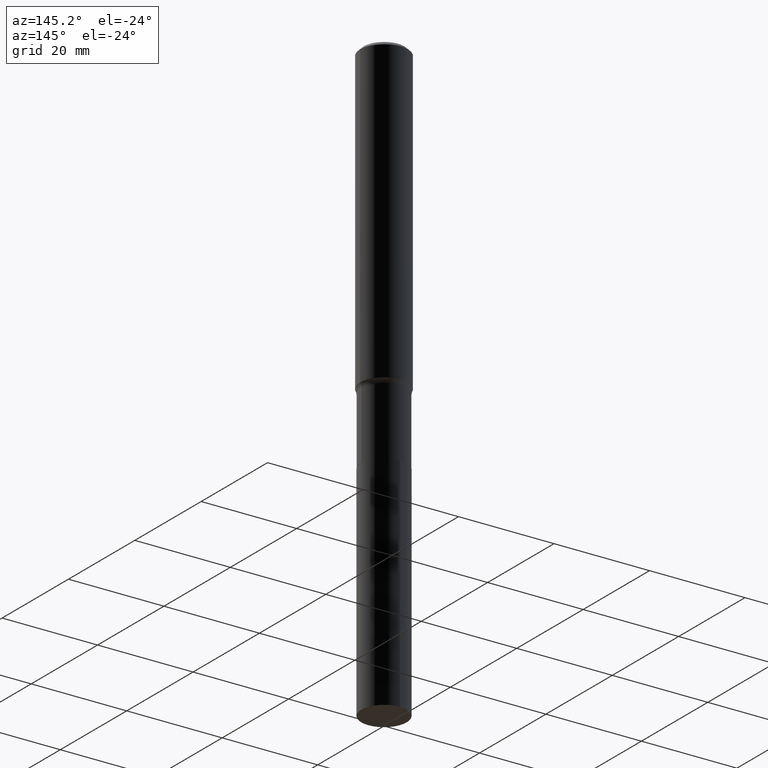
[diagram: clean part render]
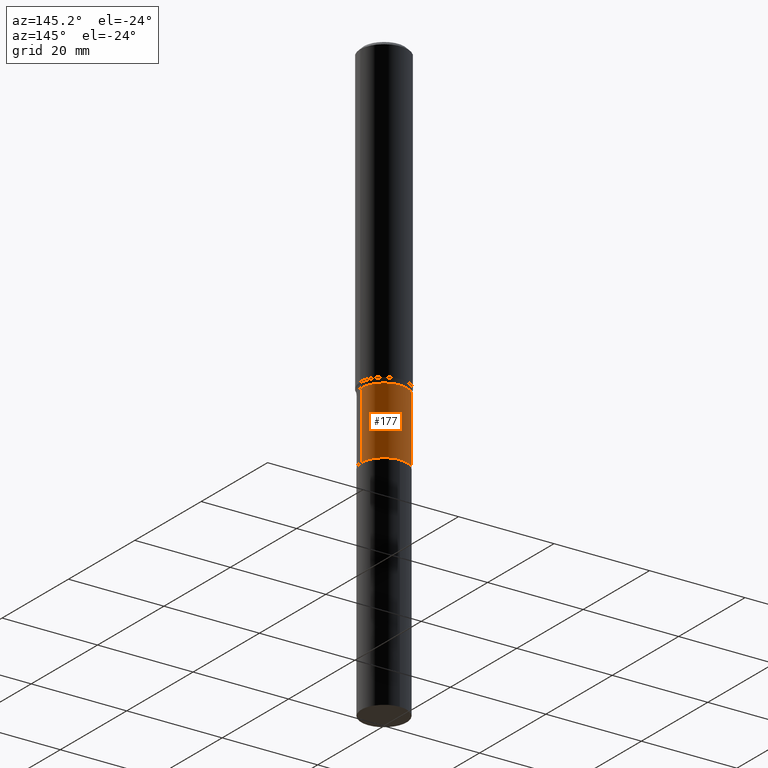
[diagram: same view with one face highlighted and labeled with its STEP entity id]
A machine part, auxiliary view. The second image highlights one B-rep face of the part: STEP entity #177.
In plain terms, the highlighted cylindrical surface (edge-blend (fillet) strip) has radius 4.7498 mm, axis along (-0, 0, 1).
Its self-contained STEP definition (entity closure, byte-faithful):
#2 = CYLINDRICAL_SURFACE ( 'NONE', #114, 0.1869999999999999718 ) ;
#11 = ORIENTED_EDGE ( 'NONE', *, *, #345, .T. ) ;
#23 = CIRCLE ( 'NONE', #323, 0.1869999999999999440 ) ;
#35 = DIRECTION ( 'NONE',  ( -2.445468806185136877E-29, 3.491481338843145188E-15, 1.000000000000000000 ) ) ;
#57 = DIRECTION ( 'NONE',  ( 1.000000000000000000, -6.982962677686265133E-15, 0.000000000000000000 ) ) ;
#71 = FACE_OUTER_BOUND ( 'NONE', #242, .T. ) ;
#74 = DIRECTION ( 'NONE',  ( 1.000000000000000000, -6.982962677686267499E-15, 0.000000000000000000 ) ) ;
#76 = DIRECTION ( 'NONE',  ( 1.000000000000000000, -6.982962677686266711E-15, 4.876176775795935793E-29 ) ) ;
#79 = CARTESIAN_POINT ( 'NONE',  ( -0.1869999999999999440, -8.492822090294381036E-15, -2.536200000000000010 ) ) ;
#80 = EDGE_CURVE ( 'NONE', #390, #309, #387, .T. ) ;
#90 = AXIS2_PLACEMENT_3D ( 'NONE', #382, #240, #57 ) ;
#98 = VECTOR ( 'NONE', #265, 39.37007874015748143 ) ;
#111 = DIRECTION ( 'NONE',  ( -2.445468806185136597E-29, 3.491481338843145583E-15, 1.000000000000000000 ) ) ;
#112 = CARTESIAN_POINT ( 'NONE',  ( 0.1869999999999999718, -1.305814020727331607E-15, 9.118450570738398307E-30 ) ) ;
#114 = AXIS2_PLACEMENT_3D ( 'NONE', #464, #219, #76 ) ;
#116 = CARTESIAN_POINT ( 'NONE',  ( -0.1869999999999999996, -8.492822090294381036E-15, -3.089799999999999436 ) ) ;
#125 = CARTESIAN_POINT ( 'NONE',  ( 0.1869999999999999996, -1.209379306148488144E-14, -3.089799999999999436 ) ) ;
#144 = LINE ( 'NONE', #112, #229 ) ;
#147 = EDGE_CURVE ( 'NONE', #390, #448, #144, .T. ) ;
#177 = ADVANCED_FACE ( 'NONE', ( #71 ), #2, .T. ) ;
#219 = DIRECTION ( 'NONE',  ( -2.445468806185136597E-29, 3.491481338843145583E-15, 1.000000000000000000 ) ) ;
#229 = VECTOR ( 'NONE', #35, 39.37007874015748143 ) ;
#230 = LINE ( 'NONE', #298, #98 ) ;
#240 = DIRECTION ( 'NONE',  ( -2.445468806185136597E-29, 3.491481338843145583E-15, 1.000000000000000000 ) ) ;
#242 = EDGE_LOOP ( 'NONE', ( #310, #11, #274, #411 ) ) ;
#265 = DIRECTION ( 'NONE',  ( -2.445468806185136877E-29, 3.491481338843145188E-15, 1.000000000000000000 ) ) ;
#274 = ORIENTED_EDGE ( 'NONE', *, *, #431, .F. ) ;
#298 = CARTESIAN_POINT ( 'NONE',  ( -0.1869999999999999718, 1.328714915871387147E-15, -9.198408618776671699E-30 ) ) ;
#309 = VERTEX_POINT ( 'NONE', #116 ) ;
#310 = ORIENTED_EDGE ( 'NONE', *, *, #80, .T. ) ;
#323 = AXIS2_PLACEMENT_3D ( 'NONE', #366, #111, #74 ) ;
#344 = CARTESIAN_POINT ( 'NONE',  ( 0.1869999999999999440, -1.016090899230131854E-14, -2.536200000000000010 ) ) ;
#345 = EDGE_CURVE ( 'NONE', #309, #376, #230, .T. ) ;
#366 = CARTESIAN_POINT ( 'NONE',  ( 6.202197986246743952E-29, -8.855094971573986534E-15, -2.536200000000000010 ) ) ;
#376 = VERTEX_POINT ( 'NONE', #79 ) ;
#382 = CARTESIAN_POINT ( 'NONE',  ( 7.556009517350832766E-29, -1.078797904075754944E-14, -3.089799999999999436 ) ) ;
#387 = CIRCLE ( 'NONE', #90, 0.1869999999999999996 ) ;
#390 = VERTEX_POINT ( 'NONE', #125 ) ;
#411 = ORIENTED_EDGE ( 'NONE', *, *, #147, .F. ) ;
#431 = EDGE_CURVE ( 'NONE', #448, #376, #23, .T. ) ;
#448 = VERTEX_POINT ( 'NONE', #344 ) ;
#464 = CARTESIAN_POINT ( 'NONE',  ( 0.000000000000000000, 0.000000000000000000, 0.000000000000000000 ) ) ;